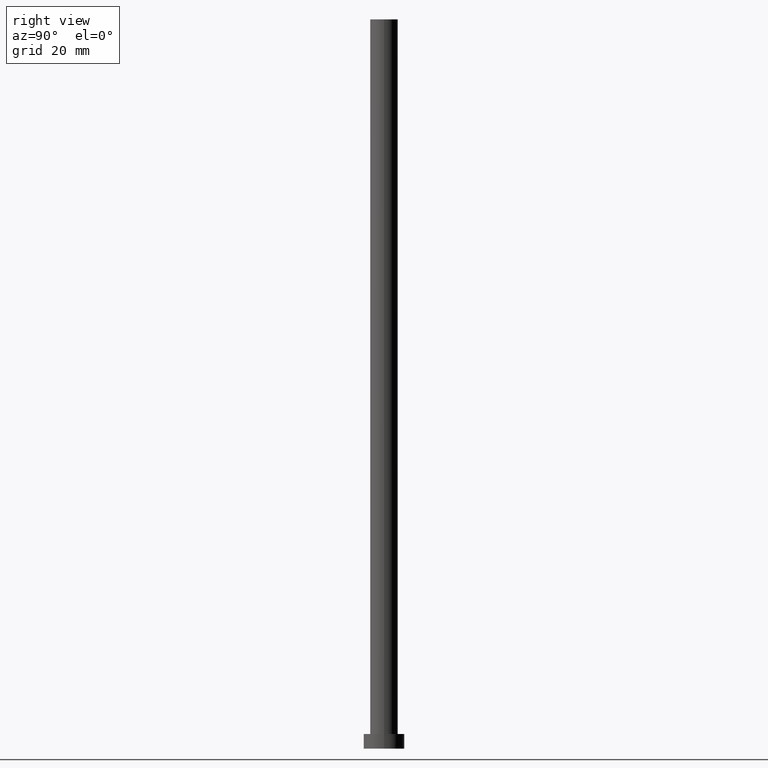
[diagram: clean part render]
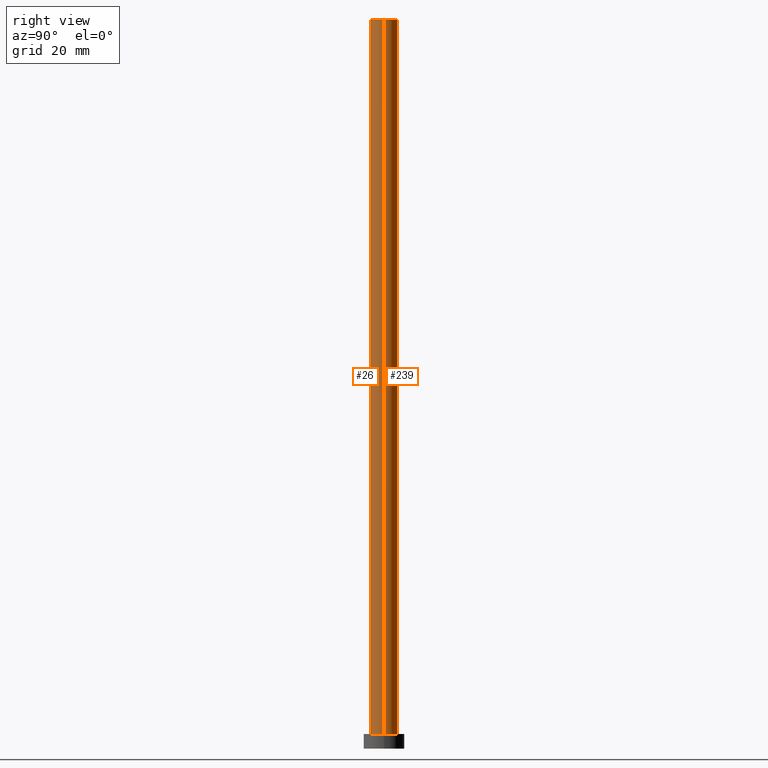
[diagram: same view with one multi-face feature highlighted, each face labeled with its STEP entity id]
A machine part, right view. The highlighted faces form ONE feature: a constant-radius fillet chain: 2 tangent blend faces with common blend radius 4.75 mm. The faces share edges in the B-rep.
Their STEP definitions:
[1] entity #26 (Cylinder):
#4 = DIRECTION ( 'NONE',  ( -0.000000000000000000, -0.000000000000000000, -1.000000000000000000 ) ) ;
#6 = ORIENTED_EDGE ( 'NONE', *, *, #65, .F. ) ;
#16 = ORIENTED_EDGE ( 'NONE', *, *, #100, .T. ) ;
#19 = ORIENTED_EDGE ( 'NONE', *, *, #130, .T. ) ;
#26 = ADVANCED_FACE ( 'NONE', ( #143 ), #99, .T. ) ;
#38 = DIRECTION ( 'NONE',  ( -1.000000000000000000, 0.000000000000000000, 0.000000000000000000 ) ) ;
#40 = CIRCLE ( 'NONE', #190, 4.750000000000000888 ) ;
#43 = CARTESIAN_POINT ( 'NONE',  ( 0.000000000000000000, 0.000000000000000000, 250.0000000000000000 ) ) ;
#45 = DIRECTION ( 'NONE',  ( 0.000000000000000000, 0.000000000000000000, 1.000000000000000000 ) ) ;
#48 = DIRECTION ( 'NONE',  ( 1.000000000000000000, 0.000000000000000000, 0.000000000000000000 ) ) ;
#61 = CIRCLE ( 'NONE', #125, 4.750000000000000888 ) ;
#63 = VERTEX_POINT ( 'NONE', #163 ) ;
#65 = EDGE_CURVE ( 'NONE', #141, #158, #185, .T. ) ;
#68 = EDGE_CURVE ( 'NONE', #63, #141, #61, .T. ) ;
#69 = AXIS2_PLACEMENT_3D ( 'NONE', #43, #109, #38 ) ;
#87 = CARTESIAN_POINT ( 'NONE',  ( 4.750000000000000888, 5.817072295949928412E-16, 250.0000000000000000 ) ) ;
#93 = CARTESIAN_POINT ( 'NONE',  ( -4.750000000000000888, 0.000000000000000000, 250.0000000000000000 ) ) ;
#99 = CYLINDRICAL_SURFACE ( 'NONE', #69, 4.750000000000000888 ) ;
#100 = EDGE_CURVE ( 'NONE', #63, #181, #132, .T. ) ;
#104 = EDGE_LOOP ( 'NONE', ( #6, #196, #16, #19 ) ) ;
#109 = DIRECTION ( 'NONE',  ( -0.000000000000000000, -0.000000000000000000, -1.000000000000000000 ) ) ;
#115 = CARTESIAN_POINT ( 'NONE',  ( 0.000000000000000000, 0.000000000000000000, 5.000000000000000000 ) ) ;
#121 = DIRECTION ( 'NONE',  ( 1.000000000000000000, 0.000000000000000000, 0.000000000000000000 ) ) ;
#124 = DIRECTION ( 'NONE',  ( -0.000000000000000000, -0.000000000000000000, -1.000000000000000000 ) ) ;
#125 = AXIS2_PLACEMENT_3D ( 'NONE', #243, #240, #121 ) ;
#130 = EDGE_CURVE ( 'NONE', #181, #158, #40, .T. ) ;
#132 = LINE ( 'NONE', #93, #218 ) ;
#141 = VERTEX_POINT ( 'NONE', #189 ) ;
#143 = FACE_OUTER_BOUND ( 'NONE', #104, .T. ) ;
#158 = VERTEX_POINT ( 'NONE', #191 ) ;
#163 = CARTESIAN_POINT ( 'NONE',  ( -4.750000000000000888, 0.000000000000000000, 250.0000000000000000 ) ) ;
#175 = VECTOR ( 'NONE', #124, 1000.000000000000000 ) ;
#181 = VERTEX_POINT ( 'NONE', #230 ) ;
#185 = LINE ( 'NONE', #87, #175 ) ;
#189 = CARTESIAN_POINT ( 'NONE',  ( 4.750000000000000888, 5.817072295949928412E-16, 250.0000000000000000 ) ) ;
#190 = AXIS2_PLACEMENT_3D ( 'NONE', #115, #45, #48 ) ;
#191 = CARTESIAN_POINT ( 'NONE',  ( 4.750000000000000888, 5.817072295949928412E-16, 5.000000000000000000 ) ) ;
#196 = ORIENTED_EDGE ( 'NONE', *, *, #68, .F. ) ;
#218 = VECTOR ( 'NONE', #4, 1000.000000000000000 ) ;
#230 = CARTESIAN_POINT ( 'NONE',  ( -4.750000000000000888, 0.000000000000000000, 5.000000000000000000 ) ) ;
#240 = DIRECTION ( 'NONE',  ( 0.000000000000000000, 0.000000000000000000, 1.000000000000000000 ) ) ;
#243 = CARTESIAN_POINT ( 'NONE',  ( 0.000000000000000000, 0.000000000000000000, 250.0000000000000000 ) ) ;
[2] entity #239 (Cylinder):
#4 = DIRECTION ( 'NONE',  ( -0.000000000000000000, -0.000000000000000000, -1.000000000000000000 ) ) ;
#11 = DIRECTION ( 'NONE',  ( 0.000000000000000000, 0.000000000000000000, 1.000000000000000000 ) ) ;
#25 = CIRCLE ( 'NONE', #188, 4.750000000000000888 ) ;
#36 = ORIENTED_EDGE ( 'NONE', *, *, #100, .F. ) ;
#50 = CARTESIAN_POINT ( 'NONE',  ( 0.000000000000000000, 0.000000000000000000, 5.000000000000000000 ) ) ;
#63 = VERTEX_POINT ( 'NONE', #163 ) ;
#65 = EDGE_CURVE ( 'NONE', #141, #158, #185, .T. ) ;
#79 = ORIENTED_EDGE ( 'NONE', *, *, #195, .F. ) ;
#83 = AXIS2_PLACEMENT_3D ( 'NONE', #50, #133, #209 ) ;
#87 = CARTESIAN_POINT ( 'NONE',  ( 4.750000000000000888, 5.817072295949928412E-16, 250.0000000000000000 ) ) ;
#93 = CARTESIAN_POINT ( 'NONE',  ( -4.750000000000000888, 0.000000000000000000, 250.0000000000000000 ) ) ;
#100 = EDGE_CURVE ( 'NONE', #63, #181, #132, .T. ) ;
#111 = CARTESIAN_POINT ( 'NONE',  ( 0.000000000000000000, 0.000000000000000000, 250.0000000000000000 ) ) ;
#119 = AXIS2_PLACEMENT_3D ( 'NONE', #111, #174, #215 ) ;
#124 = DIRECTION ( 'NONE',  ( -0.000000000000000000, -0.000000000000000000, -1.000000000000000000 ) ) ;
#132 = LINE ( 'NONE', #93, #218 ) ;
#133 = DIRECTION ( 'NONE',  ( 0.000000000000000000, 0.000000000000000000, 1.000000000000000000 ) ) ;
#136 = ORIENTED_EDGE ( 'NONE', *, *, #65, .T. ) ;
#139 = ORIENTED_EDGE ( 'NONE', *, *, #192, .T. ) ;
#141 = VERTEX_POINT ( 'NONE', #189 ) ;
#158 = VERTEX_POINT ( 'NONE', #191 ) ;
#163 = CARTESIAN_POINT ( 'NONE',  ( -4.750000000000000888, 0.000000000000000000, 250.0000000000000000 ) ) ;
#172 = FACE_OUTER_BOUND ( 'NONE', #254, .T. ) ;
#174 = DIRECTION ( 'NONE',  ( -0.000000000000000000, -0.000000000000000000, -1.000000000000000000 ) ) ;
#175 = VECTOR ( 'NONE', #124, 1000.000000000000000 ) ;
#181 = VERTEX_POINT ( 'NONE', #230 ) ;
#185 = LINE ( 'NONE', #87, #175 ) ;
#188 = AXIS2_PLACEMENT_3D ( 'NONE', #194, #11, #248 ) ;
#189 = CARTESIAN_POINT ( 'NONE',  ( 4.750000000000000888, 5.817072295949928412E-16, 250.0000000000000000 ) ) ;
#191 = CARTESIAN_POINT ( 'NONE',  ( 4.750000000000000888, 5.817072295949928412E-16, 5.000000000000000000 ) ) ;
#192 = EDGE_CURVE ( 'NONE', #158, #181, #221, .T. ) ;
#194 = CARTESIAN_POINT ( 'NONE',  ( 0.000000000000000000, 0.000000000000000000, 250.0000000000000000 ) ) ;
#195 = EDGE_CURVE ( 'NONE', #141, #63, #25, .T. ) ;
#209 = DIRECTION ( 'NONE',  ( 1.000000000000000000, 0.000000000000000000, 0.000000000000000000 ) ) ;
#215 = DIRECTION ( 'NONE',  ( -1.000000000000000000, 0.000000000000000000, 0.000000000000000000 ) ) ;
#218 = VECTOR ( 'NONE', #4, 1000.000000000000000 ) ;
#221 = CIRCLE ( 'NONE', #83, 4.750000000000000888 ) ;
#230 = CARTESIAN_POINT ( 'NONE',  ( -4.750000000000000888, 0.000000000000000000, 5.000000000000000000 ) ) ;
#239 = ADVANCED_FACE ( 'NONE', ( #172 ), #251, .T. ) ;
#248 = DIRECTION ( 'NONE',  ( 1.000000000000000000, 0.000000000000000000, 0.000000000000000000 ) ) ;
#251 = CYLINDRICAL_SURFACE ( 'NONE', #119, 4.750000000000000888 ) ;
#254 = EDGE_LOOP ( 'NONE', ( #79, #136, #139, #36 ) ) ;